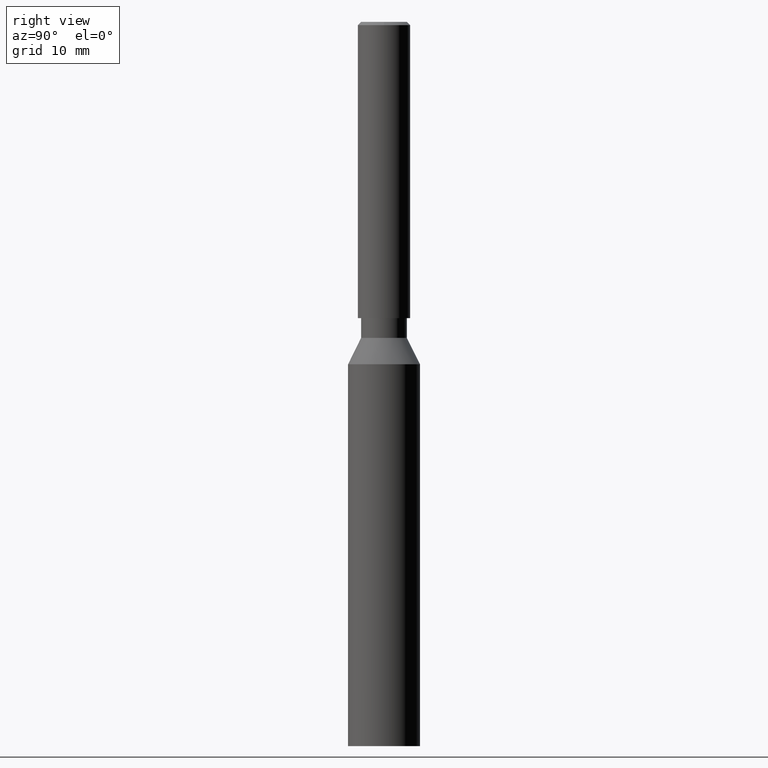
[diagram: clean part render]
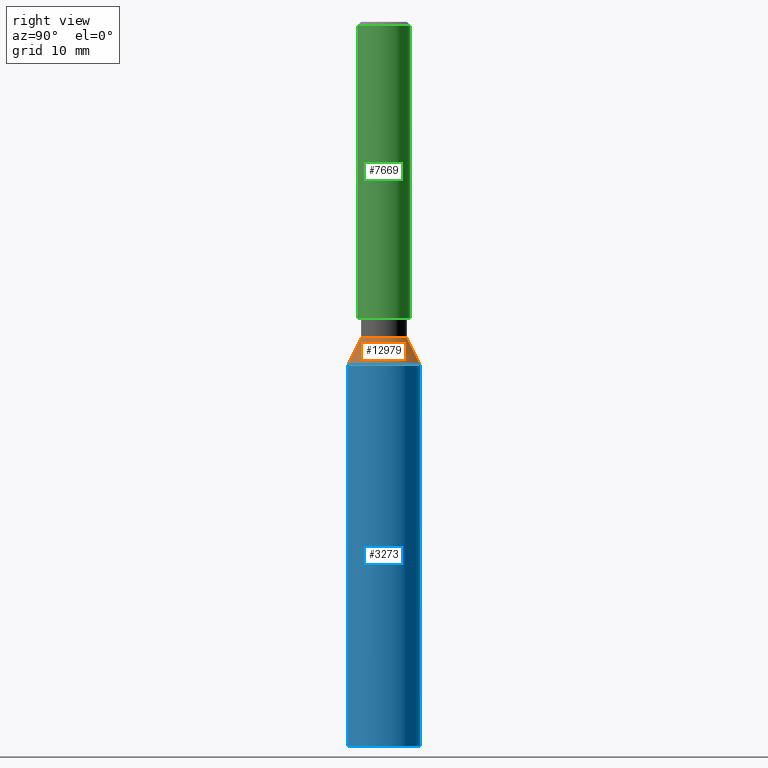
[diagram: same view with three faces highlighted in distinct colors, each labeled with its STEP entity id]
A machine part, right view with three faces highlighted in distinct colors.
Their STEP definitions:

[orange] entity #12979 — the highlighted conical surface has half-angle 26.565 deg.
#335 = ORIENTED_EDGE ( 'NONE', *, *, #10401, .F. ) ;
#593 = VERTEX_POINT ( 'NONE', #8802 ) ;
#964 = DIRECTION ( 'NONE',  ( -0.000000000000000000, -0.000000000000000000, -1.000000000000000000 ) ) ;
#1060 = DIRECTION ( 'NONE',  ( -0.000000000000000000, -0.000000000000000000, -1.000000000000000000 ) ) ;
#1076 = DIRECTION ( 'NONE',  ( -0.000000000000000000, -0.000000000000000000, -1.000000000000000000 ) ) ;
#1378 = EDGE_CURVE ( 'NONE', #13491, #13491, #8848, .T. ) ;
#2152 = CARTESIAN_POINT ( 'NONE',  ( 0.000000000000000000, 0.000000000000000000, 58.00000000000000000 ) ) ;
#3185 = EDGE_LOOP ( 'NONE', ( #11724 ) ) ;
#3623 = CONICAL_SURFACE ( 'NONE', #13222, 5.500000000000005329, 0.4636476090008060935 ) ;
#3988 = AXIS2_PLACEMENT_3D ( 'NONE', #11751, #1060, #5361 ) ;
#4441 = AXIS2_PLACEMENT_3D ( 'NONE', #7397, #964, #8463 ) ;
#5361 = DIRECTION ( 'NONE',  ( -1.000000000000000000, 0.000000000000000000, 0.000000000000000000 ) ) ;
#6352 = CIRCLE ( 'NONE', #4441, 5.500000000000005329 ) ;
#7397 = CARTESIAN_POINT ( 'NONE',  ( 0.000000000000000000, 0.000000000000000000, 58.00000000000000000 ) ) ;
#8463 = DIRECTION ( 'NONE',  ( -1.000000000000000000, 0.000000000000000000, 0.000000000000000000 ) ) ;
#8486 = FACE_OUTER_BOUND ( 'NONE', #11563, .T. ) ;
#8802 = CARTESIAN_POINT ( 'NONE',  ( -5.500000000000005329, 0.000000000000000000, 58.00000000000000000 ) ) ;
#8848 = CIRCLE ( 'NONE', #3988, 3.500000000000007994 ) ;
#9974 = DIRECTION ( 'NONE',  ( -1.000000000000000000, 0.000000000000000000, 0.000000000000000000 ) ) ;
#10401 = EDGE_CURVE ( 'NONE', #593, #593, #6352, .T. ) ;
#11563 = EDGE_LOOP ( 'NONE', ( #335 ) ) ;
#11724 = ORIENTED_EDGE ( 'NONE', *, *, #1378, .T. ) ;
#11751 = CARTESIAN_POINT ( 'NONE',  ( 0.000000000000000000, 0.000000000000000000, 62.00000000000000000 ) ) ;
#12503 = FACE_BOUND ( 'NONE', #3185, .T. ) ;
#12805 = CARTESIAN_POINT ( 'NONE',  ( -3.500000000000007994, 0.000000000000000000, 62.00000000000000000 ) ) ;
#12979 = ADVANCED_FACE ( 'NONE', ( #12503, #8486 ), #3623, .T. ) ;
#13222 = AXIS2_PLACEMENT_3D ( 'NONE', #2152, #1076, #9974 ) ;
#13491 = VERTEX_POINT ( 'NONE', #12805 ) ;

[blue] entity #3273 — the highlighted cylindrical surface (bore or boss wall) has radius 5.5 mm, axis along (-0, -0, -1).
#449 = EDGE_LOOP ( 'NONE', ( #9377 ) ) ;
#593 = VERTEX_POINT ( 'NONE', #8802 ) ;
#964 = DIRECTION ( 'NONE',  ( -0.000000000000000000, -0.000000000000000000, -1.000000000000000000 ) ) ;
#1395 = AXIS2_PLACEMENT_3D ( 'NONE', #12394, #13311, #1616 ) ;
#1616 = DIRECTION ( 'NONE',  ( 1.000000000000000000, 0.000000000000000000, 0.000000000000000000 ) ) ;
#2477 = AXIS2_PLACEMENT_3D ( 'NONE', #5018, #12509, #10392 ) ;
#3168 = CIRCLE ( 'NONE', #1395, 5.500000000000000000 ) ;
#3273 = ADVANCED_FACE ( 'NONE', ( #8991, #7169 ), #3634, .T. ) ;
#3634 = CYLINDRICAL_SURFACE ( 'NONE', #2477, 5.500000000000000000 ) ;
#4441 = AXIS2_PLACEMENT_3D ( 'NONE', #7397, #964, #8463 ) ;
#5018 = CARTESIAN_POINT ( 'NONE',  ( 0.000000000000000000, 0.000000000000000000, 64.00000000000000000 ) ) ;
#6352 = CIRCLE ( 'NONE', #4441, 5.500000000000005329 ) ;
#7169 = FACE_OUTER_BOUND ( 'NONE', #449, .T. ) ;
#7397 = CARTESIAN_POINT ( 'NONE',  ( 0.000000000000000000, 0.000000000000000000, 58.00000000000000000 ) ) ;
#8463 = DIRECTION ( 'NONE',  ( -1.000000000000000000, 0.000000000000000000, 0.000000000000000000 ) ) ;
#8802 = CARTESIAN_POINT ( 'NONE',  ( -5.500000000000005329, 0.000000000000000000, 58.00000000000000000 ) ) ;
#8969 = ORIENTED_EDGE ( 'NONE', *, *, #9369, .T. ) ;
#8991 = FACE_OUTER_BOUND ( 'NONE', #10903, .T. ) ;
#9369 = EDGE_CURVE ( 'NONE', #10649, #10649, #3168, .T. ) ;
#9377 = ORIENTED_EDGE ( 'NONE', *, *, #10401, .T. ) ;
#10234 = CARTESIAN_POINT ( 'NONE',  ( 5.500000000000000000, 0.000000000000000000, 0.000000000000000000 ) ) ;
#10392 = DIRECTION ( 'NONE',  ( -1.000000000000000000, 0.000000000000000000, 0.000000000000000000 ) ) ;
#10401 = EDGE_CURVE ( 'NONE', #593, #593, #6352, .T. ) ;
#10649 = VERTEX_POINT ( 'NONE', #10234 ) ;
#10903 = EDGE_LOOP ( 'NONE', ( #8969 ) ) ;
#12394 = CARTESIAN_POINT ( 'NONE',  ( 0.000000000000000000, 0.000000000000000000, 0.000000000000000000 ) ) ;
#12509 = DIRECTION ( 'NONE',  ( -0.000000000000000000, -0.000000000000000000, -1.000000000000000000 ) ) ;
#13311 = DIRECTION ( 'NONE',  ( 0.000000000000000000, 0.000000000000000000, 1.000000000000000000 ) ) ;

[green] entity #7669 — the highlighted cylindrical surface (bore or boss wall) has radius 4 mm, axis along (-0, -0, -1).
#116 = AXIS2_PLACEMENT_3D ( 'NONE', #6549, #5540, #12879 ) ;
#1306 = DIRECTION ( 'NONE',  ( 0.000000000000000000, 0.000000000000000000, -1.000000000000000000 ) ) ;
#1672 = FACE_OUTER_BOUND ( 'NONE', #9482, .T. ) ;
#2275 = CARTESIAN_POINT ( 'NONE',  ( -4.000000000000000000, 0.000000000000000000, 65.00000000000000000 ) ) ;
#3434 = EDGE_CURVE ( 'NONE', #4799, #4799, #11177, .T. ) ;
#3472 = CARTESIAN_POINT ( 'NONE',  ( 0.000000000000000000, 0.000000000000000000, 109.5000000000000000 ) ) ;
#3704 = FACE_OUTER_BOUND ( 'NONE', #11566, .T. ) ;
#3755 = AXIS2_PLACEMENT_3D ( 'NONE', #10409, #8271, #13595 ) ;
#4799 = VERTEX_POINT ( 'NONE', #10381 ) ;
#5501 = CIRCLE ( 'NONE', #116, 4.000000000000000000 ) ;
#5540 = DIRECTION ( 'NONE',  ( -0.000000000000000000, -0.000000000000000000, -1.000000000000000000 ) ) ;
#6549 = CARTESIAN_POINT ( 'NONE',  ( 0.000000000000000000, 0.000000000000000000, 65.00000000000000000 ) ) ;
#7669 = ADVANCED_FACE ( 'NONE', ( #1672, #3704 ), #8378, .T. ) ;
#8271 = DIRECTION ( 'NONE',  ( -0.000000000000000000, -0.000000000000000000, -1.000000000000000000 ) ) ;
#8299 = EDGE_CURVE ( 'NONE', #9972, #9972, #5501, .T. ) ;
#8378 = CYLINDRICAL_SURFACE ( 'NONE', #3755, 4.000000000000000000 ) ;
#8622 = ORIENTED_EDGE ( 'NONE', *, *, #8299, .F. ) ;
#8659 = DIRECTION ( 'NONE',  ( 1.000000000000000000, 0.000000000000000000, 0.000000000000000000 ) ) ;
#9384 = AXIS2_PLACEMENT_3D ( 'NONE', #3472, #1306, #8659 ) ;
#9482 = EDGE_LOOP ( 'NONE', ( #12977 ) ) ;
#9972 = VERTEX_POINT ( 'NONE', #2275 ) ;
#10381 = CARTESIAN_POINT ( 'NONE',  ( 4.000000000000000000, 0.000000000000000000, 109.5000000000000000 ) ) ;
#10409 = CARTESIAN_POINT ( 'NONE',  ( 0.000000000000000000, 0.000000000000000000, 110.0000000000000000 ) ) ;
#11177 = CIRCLE ( 'NONE', #9384, 4.000000000000000000 ) ;
#11566 = EDGE_LOOP ( 'NONE', ( #8622 ) ) ;
#12879 = DIRECTION ( 'NONE',  ( -1.000000000000000000, 0.000000000000000000, 0.000000000000000000 ) ) ;
#12977 = ORIENTED_EDGE ( 'NONE', *, *, #3434, .T. ) ;
#13595 = DIRECTION ( 'NONE',  ( -1.000000000000000000, 0.000000000000000000, 0.000000000000000000 ) ) ;